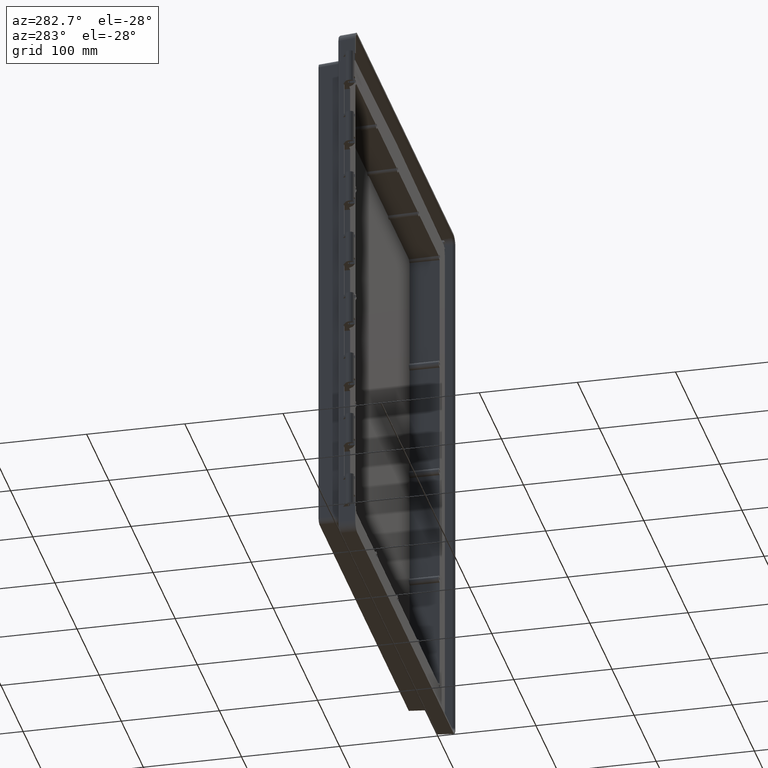
[diagram: clean part render]
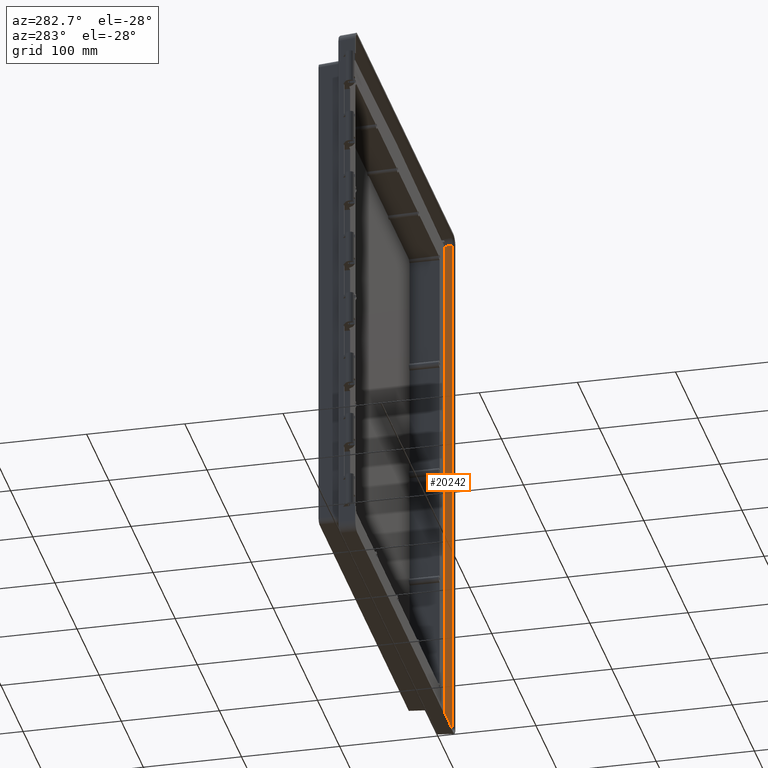
[diagram: same view with one face highlighted and labeled with its STEP entity id]
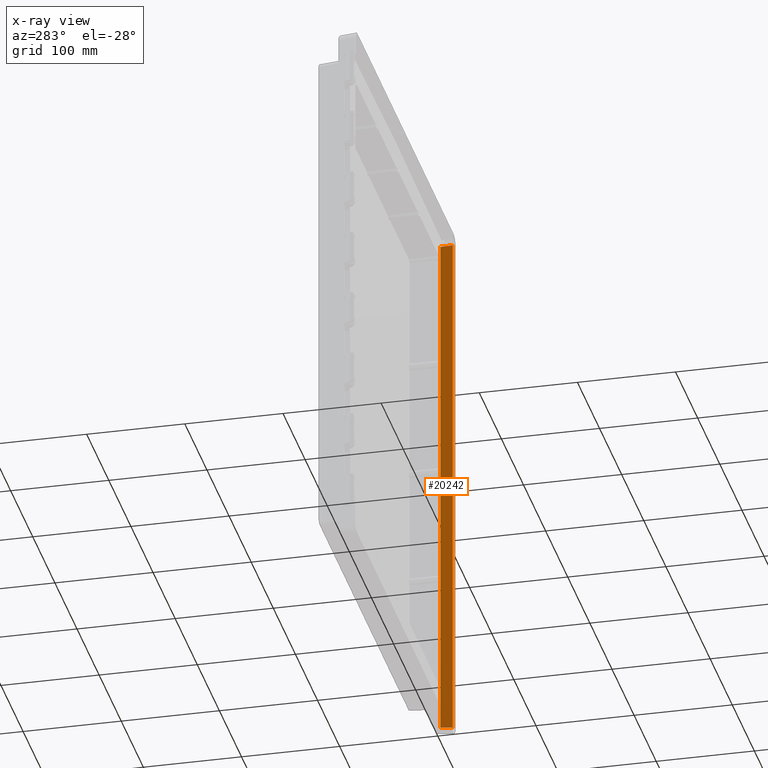
[diagram: x-ray of the same camera — body ghosted, the highlighted face saturated]
A machine part, auxiliary view. The second image highlights one B-rep face of the part: STEP entity #20242.
The next image is the same camera in x-ray: the body ghosted, the highlighted face saturated — about 0% of this face is hidden behind the body in this view.
In plain terms, the highlighted planar face has unit normal (0.9986, 0.0523, 0).
Its self-contained STEP definition (entity closure, byte-faithful):
#1 = CARTESIAN_POINT ( 'NONE',  ( 222.7837109782260000, -1.754887357811902600, -270.9426178343957200 ) ) ;
#543 = EDGE_CURVE ( 'NONE', #8187, #7913, #15750, .T. ) ;
#1572 = CARTESIAN_POINT ( 'NONE',  ( 223.2158473112000100, -10.00280472741000000, 271.3748702066000100 ) ) ;
#2987 = EDGE_LOOP ( 'NONE', ( #20297, #8055, #17878, #13673 ) ) ;
#3796 = CARTESIAN_POINT ( 'NONE',  ( 223.2159656861508900, -10.00279852364170300, 90.45829006886668800 ) ) ;
#5018 = B_SPLINE_CURVE_WITH_KNOTS ( 'NONE', 3,
 ( #6665, #1, #19376, #17245 ),
 .UNSPECIFIED., .F., .F.,
 ( 4, 4 ),
 ( 0.0000000000000000000, 1.000000000000000000 ),
 .UNSPECIFIED. ) ;
#5314 = CARTESIAN_POINT ( 'NONE',  ( 222.5675836242000100, 2.369068225099999900, 270.7264916483000000 ) ) ;
#5997 = CARTESIAN_POINT ( 'NONE',  ( 223.2159656861508900, -10.00279852364170300, -90.45829006886663100 ) ) ;
#6282 = CARTESIAN_POINT ( 'NONE',  ( 223.2158473112000100, -10.00280472741000000, 271.3748702066000100 ) ) ;
#6665 = CARTESIAN_POINT ( 'NONE',  ( 222.5675836242000100, 2.369068225099999900, -270.7264916483000000 ) ) ;
#7236 = EDGE_CURVE ( 'NONE', #8908, #8837, #12587, .T. ) ;
#7292 = DIRECTION ( 'NONE',  ( -0.05233595624293865100, 0.9986295347545742800, 0.0000000000000000000 ) ) ;
#7913 = VERTEX_POINT ( 'NONE', #5314 ) ;
#8055 = ORIENTED_EDGE ( 'NONE', *, *, #543, .F. ) ;
#8187 = VERTEX_POINT ( 'NONE', #16512 ) ;
#8224 = CARTESIAN_POINT ( 'NONE',  ( 223.2158473112000100, -10.00280472741000000, -271.3748702066000100 ) ) ;
#8837 = VERTEX_POINT ( 'NONE', #6282 ) ;
#8908 = VERTEX_POINT ( 'NONE', #15814 ) ;
#9552 = DIRECTION ( 'NONE',  ( 0.9986295347545742800, 0.05233595624293865100, 0.0000000000000000000 ) ) ;
#9798 = CARTESIAN_POINT ( 'NONE',  ( 223.2158473112000100, -10.00280472741000000, 271.3748702066000100 ) ) ;
#10857 = B_SPLINE_CURVE_WITH_KNOTS ( 'NONE', 3,
 ( #16421, #14205, #11983, #9798 ),
 .UNSPECIFIED., .F., .F.,
 ( 4, 4 ),
 ( 0.0000000000000000000, 1.000000000000000000 ),
 .UNSPECIFIED. ) ;
#10900 = AXIS2_PLACEMENT_3D ( 'NONE', #11730, #9552, #7292 ) ;
#10979 = FACE_OUTER_BOUND ( 'NONE', #2987, .T. ) ;
#11730 = CARTESIAN_POINT ( 'NONE',  ( 222.8986295347999900, -3.947664043756999900, 276.5500000000000100 ) ) ;
#11983 = CARTESIAN_POINT ( 'NONE',  ( 222.9998402933137200, -5.878880361827694600, 271.1587494852863100 ) ) ;
#12587 = B_SPLINE_CURVE_WITH_KNOTS ( 'NONE', 3,
 ( #8224, #5997, #3796, #1572 ),
 .UNSPECIFIED., .F., .F.,
 ( 4, 4 ),
 ( 0.0000000000000000000, 1.000000000000000000 ),
 .UNSPECIFIED. ) ;
#12785 = EDGE_CURVE ( 'NONE', #7913, #8837, #10857, .T. ) ;
#13673 = ORIENTED_EDGE ( 'NONE', *, *, #7236, .T. ) ;
#13949 = PLANE ( 'NONE',  #10900 ) ;
#14177 = EDGE_CURVE ( 'NONE', #8187, #8908, #5018, .T. ) ;
#14205 = CARTESIAN_POINT ( 'NONE',  ( 222.7837109781944800, -1.754887357812128200, 270.9426178344230000 ) ) ;
#15314 = VECTOR ( 'NONE', #15707, 1000.000000000000000 ) ;
#15707 = DIRECTION ( 'NONE',  ( 0.0000000000000000000, 0.0000000000000000000, 1.000000000000000000 ) ) ;
#15729 = CARTESIAN_POINT ( 'NONE',  ( 222.5675836242000100, 2.369068225099999900, -270.7264916483000000 ) ) ;
#15750 = LINE ( 'NONE', #15729, #15314 ) ;
#15814 = CARTESIAN_POINT ( 'NONE',  ( 223.2158473112000100, -10.00280472741000000, -271.3748702066000100 ) ) ;
#16421 = CARTESIAN_POINT ( 'NONE',  ( 222.5675836242000100, 2.369068225099999900, 270.7264916483000000 ) ) ;
#16512 = CARTESIAN_POINT ( 'NONE',  ( 222.5675836242000100, 2.369068225099999900, -270.7264916483000000 ) ) ;
#17245 = CARTESIAN_POINT ( 'NONE',  ( 223.2158473112000100, -10.00280472741000000, -271.3748702066000100 ) ) ;
#17878 = ORIENTED_EDGE ( 'NONE', *, *, #14177, .T. ) ;
#19376 = CARTESIAN_POINT ( 'NONE',  ( 222.9998383321884900, -5.878842940727135000, -271.1587440204915000 ) ) ;
#20242 = ADVANCED_FACE ( 'NONE', ( #10979 ), #13949, .F. ) ;
#20297 = ORIENTED_EDGE ( 'NONE', *, *, #12785, .F. ) ;